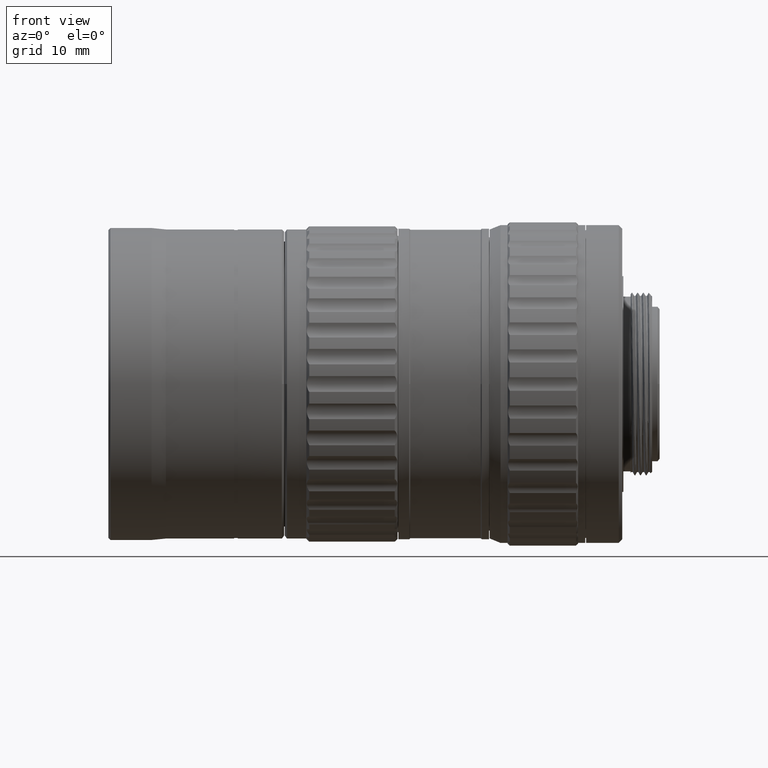
[diagram: clean part render]
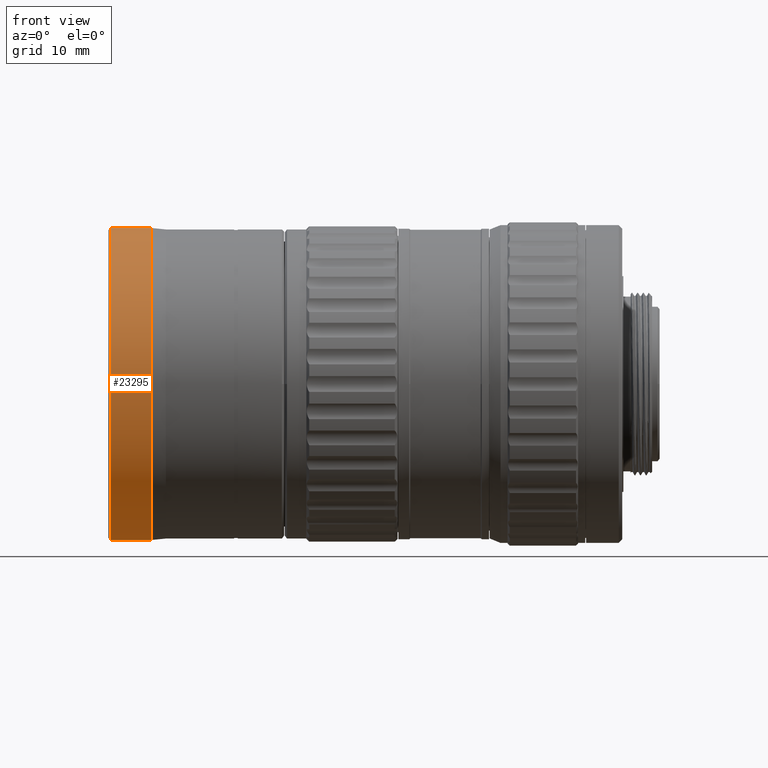
[diagram: same view with one face highlighted and labeled with its STEP entity id]
A machine part, front view. The second image highlights one B-rep face of the part: STEP entity #23295.
In plain terms, the highlighted cylindrical surface (partial cylindrical patch) has radius 21.7 mm, axis along (1, -0, 0).
Its self-contained STEP definition (entity closure, byte-faithful):
#1407 = VERTEX_POINT ( 'NONE', #2119 ) ;
#2077 = DIRECTION ( 'NONE',  ( 1.000000000000000000, -0.000000000000000000, 0.000000000000000000 ) ) ;
#2119 = CARTESIAN_POINT ( 'NONE',  ( 6.029999999999702709, 0.000000000000000000, -21.70000000000388241 ) ) ;
#2371 = CARTESIAN_POINT ( 'NONE',  ( 0.3299999999999649880, 0.000000000000000000, 0.000000000000000000 ) ) ;
#4211 = VERTEX_POINT ( 'NONE', #53357 ) ;
#4242 = CARTESIAN_POINT ( 'NONE',  ( 0.3299999999999649880, 2.657483554149756738E-15, 21.69999999999999929 ) ) ;
#4815 = DIRECTION ( 'NONE',  ( -1.000000000000000000, -0.000000000000000000, -0.000000000000000000 ) ) ;
#7468 = CARTESIAN_POINT ( 'NONE',  ( 6.029999999999702709, 0.000000000000000000, 0.000000000000000000 ) ) ;
#7996 = ORIENTED_EDGE ( 'NONE', *, *, #8379, .T. ) ;
#8379 = EDGE_CURVE ( 'NONE', #1407, #50341, #16494, .T. ) ;
#10967 = AXIS2_PLACEMENT_3D ( 'NONE', #7468, #28929, #55552 ) ;
#11291 = AXIS2_PLACEMENT_3D ( 'NONE', #35668, #4815, #13138 ) ;
#13138 = DIRECTION ( 'NONE',  ( 0.000000000000000000, -1.000000000000000000, 0.000000000000000000 ) ) ;
#15556 = DIRECTION ( 'NONE',  ( 1.000000000000000000, -0.000000000000000000, 0.000000000000000000 ) ) ;
#16494 = CIRCLE ( 'NONE', #10967, 21.70000000000388596 ) ;
#19845 = LINE ( 'NONE', #37277, #40787 ) ;
#20058 = EDGE_CURVE ( 'NONE', #4211, #21670, #35911, .T. ) ;
#21057 = ORIENTED_EDGE ( 'NONE', *, *, #51953, .F. ) ;
#21405 = LINE ( 'NONE', #4242, #41703 ) ;
#21670 = VERTEX_POINT ( 'NONE', #28530 ) ;
#23295 = ADVANCED_FACE ( 'NONE', ( #23825 ), #41253, .T. ) ;
#23825 = FACE_OUTER_BOUND ( 'NONE', #31840, .T. ) ;
#24597 = ORIENTED_EDGE ( 'NONE', *, *, #20058, .F. ) ;
#28530 = CARTESIAN_POINT ( 'NONE',  ( 0.3299999999999649325, 9.147534892640804009E-14, 21.69999999999999929 ) ) ;
#28929 = DIRECTION ( 'NONE',  ( -1.000000000000000000, -0.000000000000000000, -0.000000000000000000 ) ) ;
#30490 = AXIS2_PLACEMENT_3D ( 'NONE', #2371, #2077, #32682 ) ;
#31840 = EDGE_LOOP ( 'NONE', ( #21057, #24597, #52357, #7996 ) ) ;
#32682 = DIRECTION ( 'NONE',  ( 0.000000000000000000, 0.000000000000000000, -1.000000000000000000 ) ) ;
#35668 = CARTESIAN_POINT ( 'NONE',  ( 0.3299999999999649325, 0.000000000000000000, 0.000000000000000000 ) ) ;
#35911 = CIRCLE ( 'NONE', #11291, 21.69999999999999929 ) ;
#37277 = CARTESIAN_POINT ( 'NONE',  ( 0.3299999999999649880, 0.000000000000000000, -21.69999999999999929 ) ) ;
#40787 = VECTOR ( 'NONE', #15556, 1000.000000000000000 ) ;
#41253 = CYLINDRICAL_SURFACE ( 'NONE', #30490, 21.69999999999999929 ) ;
#41703 = VECTOR ( 'NONE', #55755, 1000.000000000000000 ) ;
#43391 = CARTESIAN_POINT ( 'NONE',  ( 6.029999999999702709, 2.657483554150232421E-15, 21.70000000000388241 ) ) ;
#50341 = VERTEX_POINT ( 'NONE', #43391 ) ;
#51318 = EDGE_CURVE ( 'NONE', #4211, #1407, #19845, .T. ) ;
#51953 = EDGE_CURVE ( 'NONE', #21670, #50341, #21405, .T. ) ;
#52357 = ORIENTED_EDGE ( 'NONE', *, *, #51318, .T. ) ;
#53357 = CARTESIAN_POINT ( 'NONE',  ( 0.3299999999999649325, 8.881786537225732055E-14, -21.69999999999999929 ) ) ;
#55552 = DIRECTION ( 'NONE',  ( -5.196176310528675875E-16, -1.000000000000000000, 0.000000000000000000 ) ) ;
#55755 = DIRECTION ( 'NONE',  ( 1.000000000000000000, -0.000000000000000000, 0.000000000000000000 ) ) ;